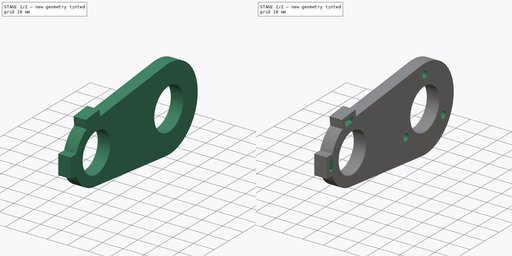
[diagram: build sequence overview — one tinted view per stage of 2, left to right]
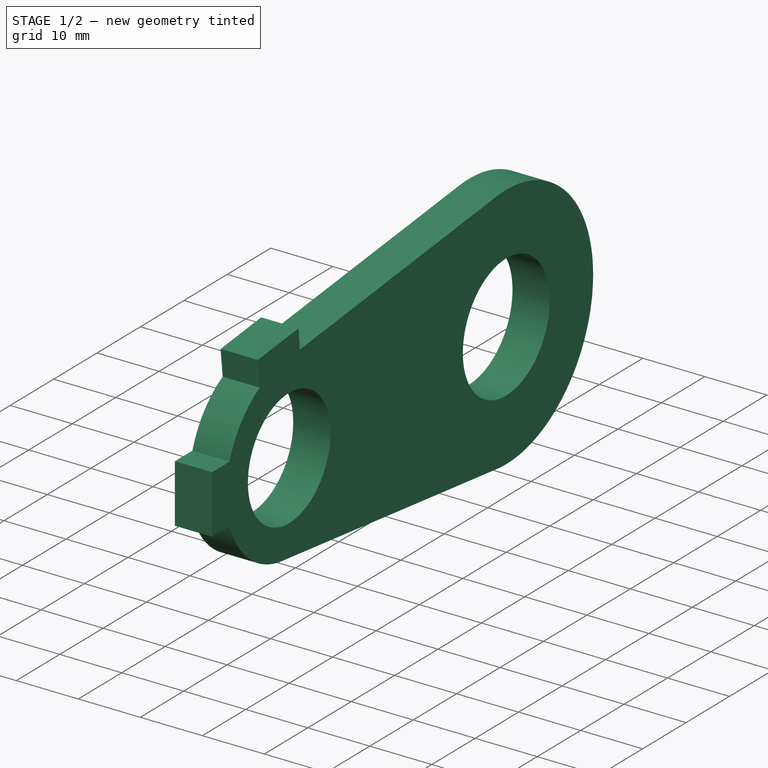
[diagram: stage 1 of 2 — iso view after this stage's code; geometry added in this stage tinted green]
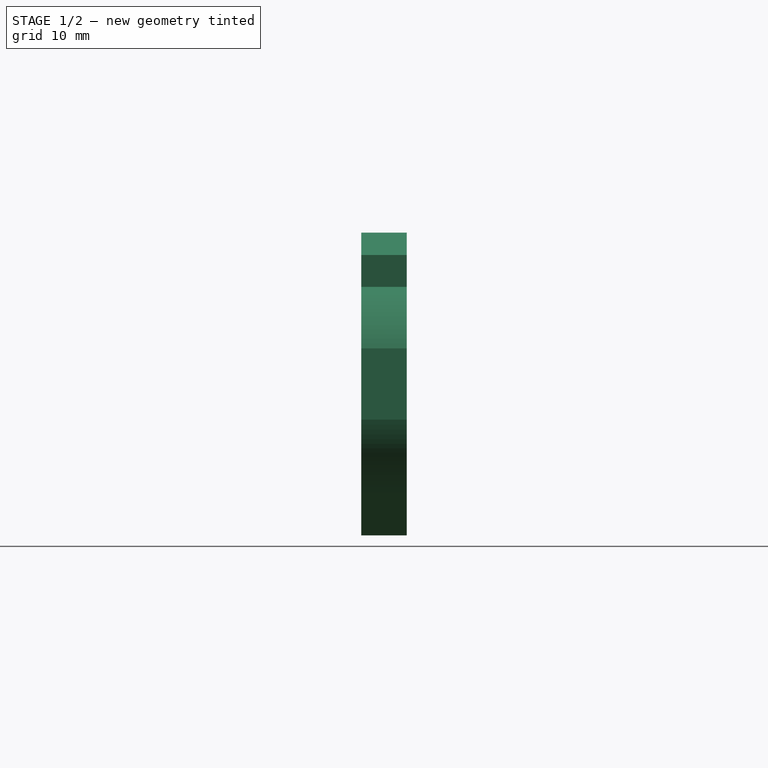
[diagram: stage 1 of 2 — front view after this stage's code; geometry added in this stage tinted green]
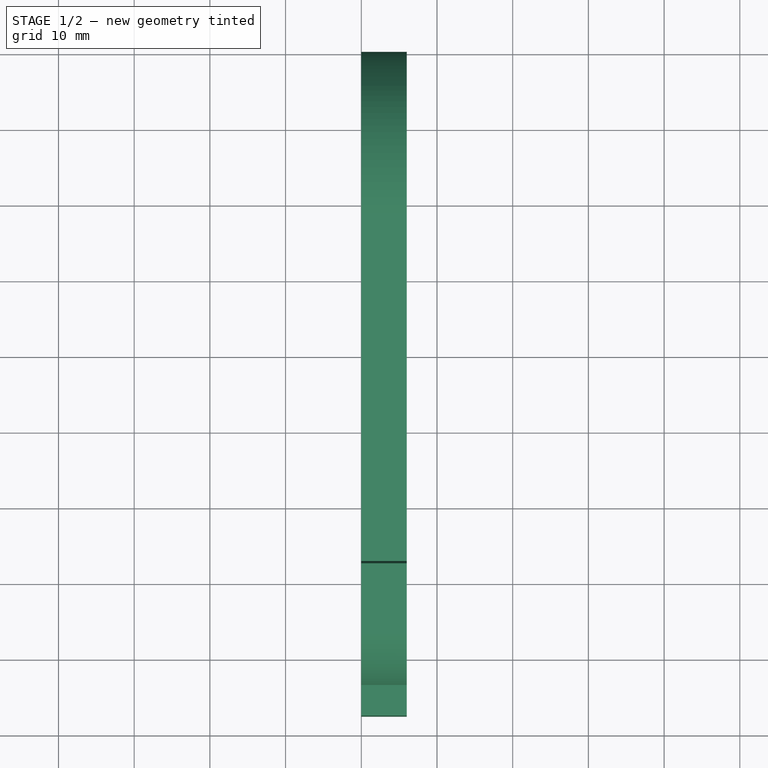
[diagram: stage 1 of 2 — top view after this stage's code; geometry added in this stage tinted green]
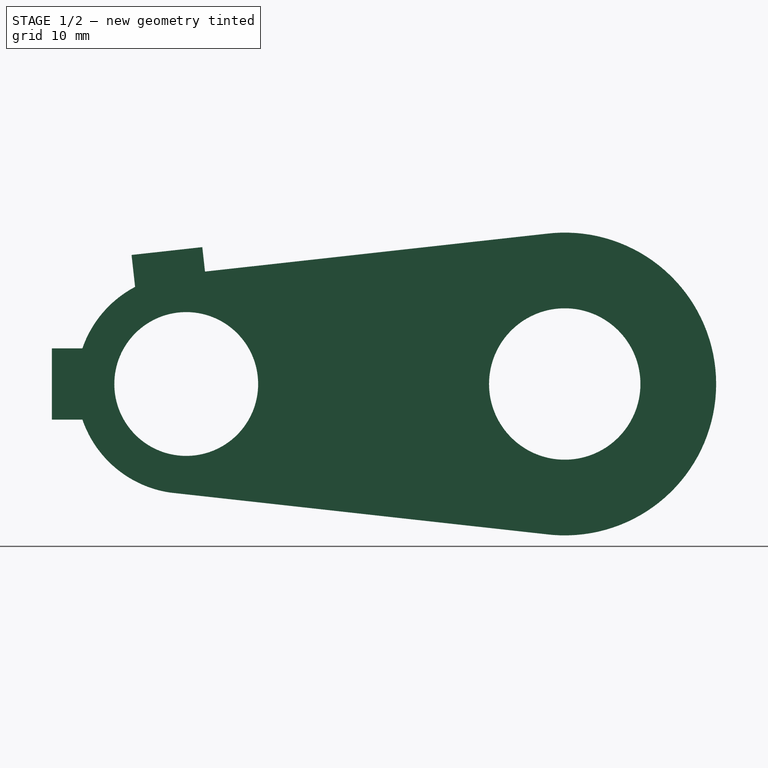
[diagram: stage 1 of 2 — right view after this stage's code; geometry added in this stage tinted green]
FCSTD DOCUMENT  (FreeCAD 0.19R24291 (Git))
Label: Pivot_codeur
License: All rights reserved
LicenseURL: http://en.wikipedia.org/wiki/All_rights_reserved
objects: Sketcher::SketchObject×4, PartDesign::Pad×2, PartDesign::Pocket×2, PartDesign::Body×1, Part::Refine×1, Part::Part2DObjectPython×1
note: 15 computed .brp shape members not serialized (recipe doc carries the construction recipe); baked Part::Feature solids carry a one-line shape summary decoded from their .brp

FEATURE [Sketcher::SketchObject] Sketch
  FullyConstrained = false
  MapMode = 5
  Placement = pos=(0,0,0) rot=(0.57735,0.57735,0.57735;2.0944rad)
  Support = -> [YZ_Plane]
  sketch-geometry (6):
    g0: ArcOfCircle CenterX=0 CenterY=0 CenterZ=0 NormalX=0 NormalY=0 NormalZ=1 AngleXU=0 Radius=14.5 StartAngle=1.72259 EndAngle=4.5606
    g1: ArcOfCircle CenterX=50 CenterY=0 CenterZ=0 NormalX=0 NormalY=0 NormalZ=1 AngleXU=0 Radius=20 StartAngle=4.58533 EndAngle=7.98104
    g2: LineSegment StartX=-2.19256 StartY=14.3333 StartZ=0 EndX=47.4656 EndY=19.8388 EndZ=0
    g3: LineSegment StartX=-2.19256 StartY=-14.3333 StartZ=0 EndX=47.4656 EndY=-19.8388 EndZ=0
    g4: Circle CenterX=0 CenterY=0 CenterZ=0 NormalX=0 NormalY=0 NormalZ=1 AngleXU=0 Radius=9.5
    g5: Circle CenterX=50 CenterY=0 CenterZ=0 NormalX=0 NormalY=0 NormalZ=1 AngleXU=0 Radius=10
  constraints (15):
    c: Coincident(g0,g-1)
    c: Radius(g0) = 14.5
    c: PointOnObject(g1,g-1)
    c: Radius(g1) = 20
    c: Coincident(g2,g0)
    c: Coincident(g2,g1)
    c: Coincident(g3,g0)
    c: Coincident(g3,g1)
    c: DistanceX(g0,g1) = 50
    c: Vertical(g0,g0)
    c: Vertical(g1,g1)
    c: Coincident(g4,g0)
    c: Radius(g4) = 9.5
    c: Coincident(g5,g1)
    c: Radius(g5) = 10
FEATURE [PartDesign::Pad] Pad  label="base_pivot"
  Direction = (1,1,1)
  Length = 6
  Length2 = 100
  Placement = pos=(0,0,0) rot=(0.57735,0.57735,0.57735;2.0944rad)
  Profile = -> Sketch
  Type = 0
FEATURE [Sketcher::SketchObject] Sketch001
  ExternalGeometry = -> [Pad]
  FullyConstrained = true
  MapMode = 5
  Placement = pos=(6,-1.3e-15,1.3e-15) rot=(0.57735,0.57735,0.57735;2.0944rad)
  Support = -> [Pad]
  sketch-geometry (14):
    g0: LineSegment StartX=-7.22206 StartY=17.0456 StartZ=0 EndX=2.12069 EndY=18.0814 EndZ=0
    g1: LineSegment StartX=2.83694 StartY=11.621 StartZ=0 EndX=-6.50581 EndY=10.5852 EndZ=0
    g2: LineSegment StartX=-7.22206 StartY=17.0456 StartZ=0 EndX=2.83694 EndY=11.621 EndZ=0
    g3: LineSegment StartX=-6.50581 StartY=10.5852 StartZ=0 EndX=2.12069 EndY=18.0814 EndZ=0
    g4: GeomPoint X=-2.19256 Y=14.3333 Z=0
    g5: GeomPoint X=-14.5 Y=0 Z=0
    g6: LineSegment StartX=-17.75 StartY=-4.7 StartZ=0 EndX=-11.25 EndY=-4.7 EndZ=0
    g7: LineSegment StartX=-11.25 StartY=-4.7 StartZ=0 EndX=-11.25 EndY=4.7 EndZ=0
    g8: LineSegment StartX=-11.25 StartY=4.7 StartZ=0 EndX=-17.75 EndY=4.7 EndZ=0
    g9: LineSegment StartX=-17.75 StartY=4.7 StartZ=0 EndX=-17.75 EndY=-4.7 EndZ=0
    g10: LineSegment StartX=-17.75 StartY=4.7 StartZ=0 EndX=-11.25 EndY=-4.7 EndZ=0
    g11: LineSegment StartX=-17.75 StartY=-4.7 StartZ=0 EndX=-11.25 EndY=4.7 EndZ=0
    g12: LineSegment StartX=-7.22206 StartY=17.0456 StartZ=0 EndX=-6.50581 EndY=10.5852 EndZ=0
    g13: LineSegment StartX=2.12069 StartY=18.0814 StartZ=0 EndX=2.83694 EndY=11.621 EndZ=0
  constraints (35):
    c: Distance(g0) = 9.4
    c: Parallel(g1,g-3)
    c: Coincident(g2,g0)
    c: Coincident(g3,g1)
    c: Coincident(g3,g0)
    c: PointOnObject(g4,g3)
    c: PointOnObject(g4,g2)
    c: Coincident(g4,g-4)
    c: PointOnObject(g5,g-4)
    c: PointOnObject(g5,g-1)
    c: Coincident(g6,g7)
    c: Coincident(g7,g8)
    c: Coincident(g8,g9)
    c: Coincident(g9,g6)
    c: Horizontal(g6)
    c: Horizontal(g8)
    c: Vertical(g7)
    c: Vertical(g9)
    c: Coincident(g10,g8)
    c: Coincident(g10,g6)
    c: Coincident(g11,g6)
    c: Coincident(g11,g7)
    c: PointOnObject(g5,g10)
    c: PointOnObject(g5,g11)
    c: DistanceX(g8,g8) = 6.5
    c: DistanceY(g9,g9) = 9.4
    c: Equal(g1,g0)
    c: Distance(g0,g1) = 6.5
    c: Coincident(g12,g0)
    c: Coincident(g12,g1)
    c: Coincident(g13,g0)
    c: Coincident(g13,g1)
    c: Equal(g12,g13)
    c: Perpendicular(g0,g12)
    c: Coincident(g2,g1)
FEATURE [PartDesign::Pad] Pad001  label="supports_ecrous"
  BaseFeature = -> Pad
  Direction = (1,1,1)
  Length = 6
  Length2 = 100
  Placement = pos=(0,0,0) rot=(0.57735,0.57735,0.57735;2.0944rad)
  Profile = -> Sketch001
  Reversed = true
  Type = 1
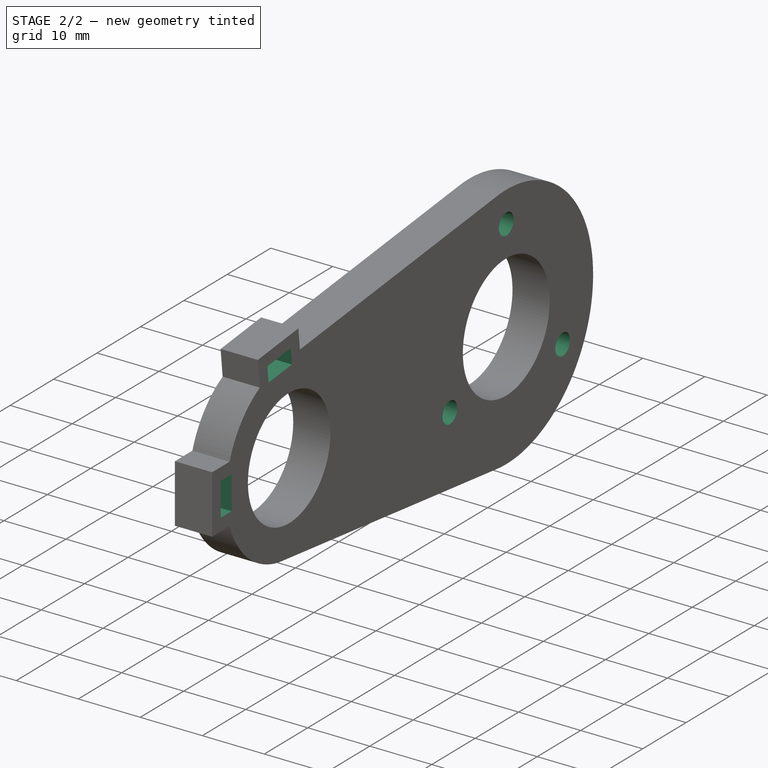
[diagram: stage 2 of 2 — iso view after this stage's code; geometry added in this stage tinted green]
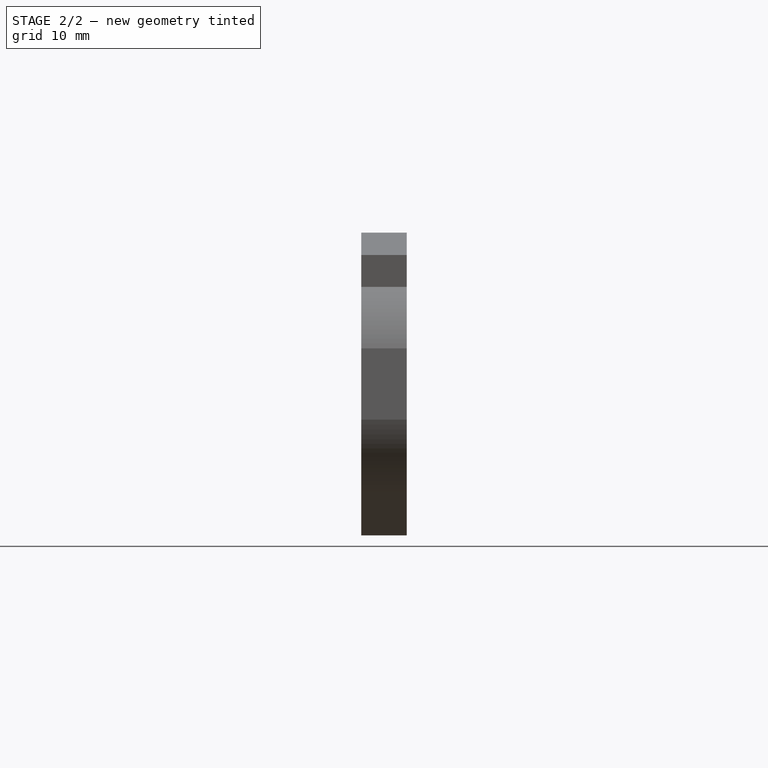
[diagram: stage 2 of 2 — front view after this stage's code; geometry added in this stage tinted green]
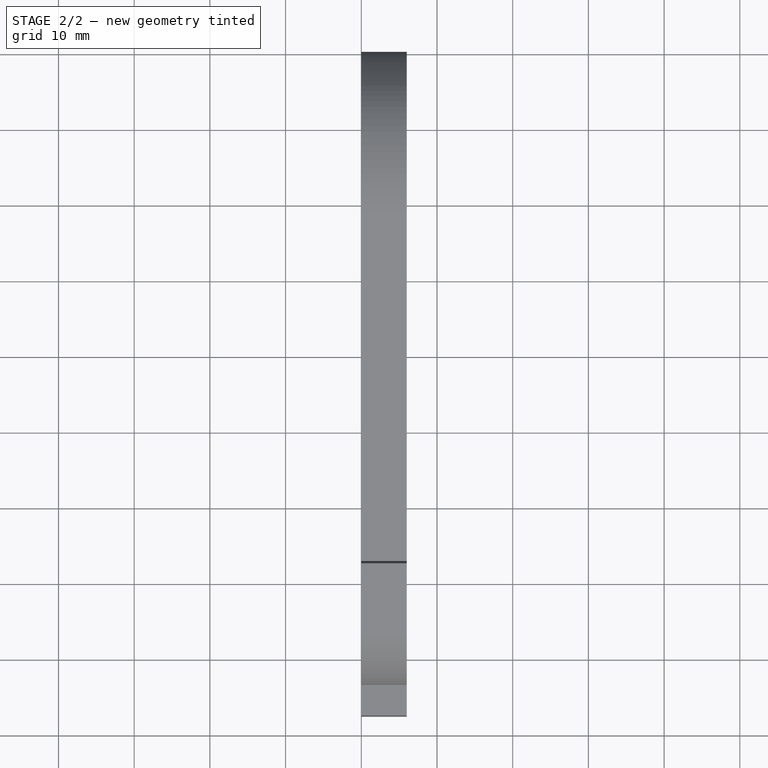
[diagram: stage 2 of 2 — top view after this stage's code; geometry added in this stage tinted green]
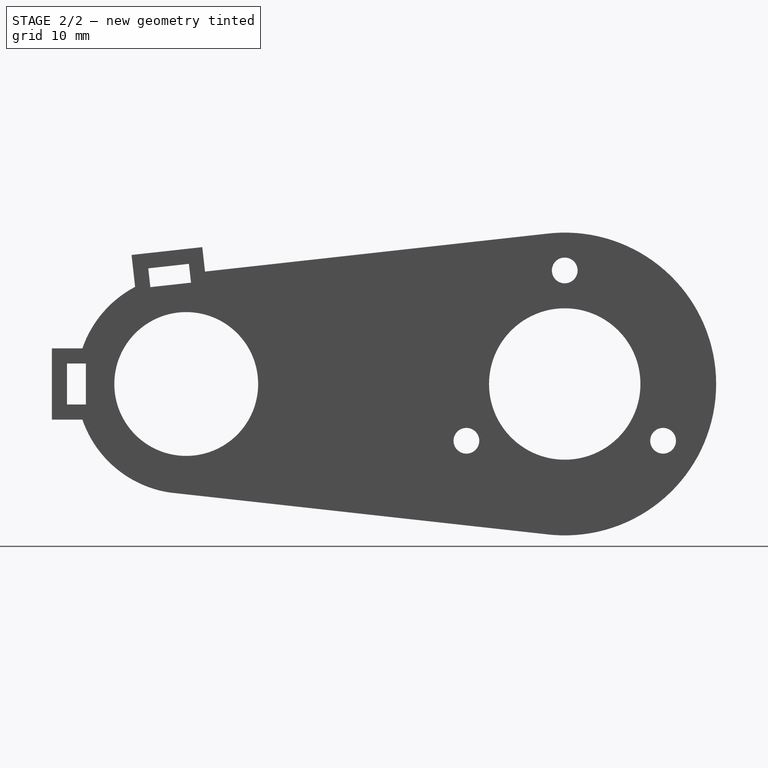
[diagram: stage 2 of 2 — right view after this stage's code; geometry added in this stage tinted green]
FEATURE [Sketcher::SketchObject] Sketch002
  ExternalGeometry = -> [Pad001]
  FullyConstrained = false
  MapMode = 5
  Placement = pos=(6,-1.3e-15,1.5e-15) rot=(0.57735,0.57735,0.57735;2.0944rad)
  Support = -> [Pad001]
  sketch-geometry (18):
    g0: LineSegment StartX=2.47882 StartY=14.8512 StartZ=0 EndX=2.47882 EndY=14.8512 EndZ=0
    g1: LineSegment StartX=-6.50581 StartY=10.5852 StartZ=0 EndX=-6.75475 EndY=12.8306 EndZ=0
    g2: LineSegment StartX=-4.73838 StartY=12.7934 StartZ=0 EndX=-5.01386 EndY=15.2781 EndZ=0
    g3: LineSegment StartX=-5.01386 StartY=15.2781 StartZ=0 EndX=0.353257 EndY=15.8732 EndZ=0
    g4: LineSegment StartX=0.353257 StartY=15.8732 StartZ=0 EndX=0.628739 EndY=13.3884 EndZ=0
    g5: LineSegment StartX=0.628739 StartY=13.3884 StartZ=0 EndX=-4.73838 EndY=12.7934 EndZ=0
    g6: LineSegment StartX=-5.01386 StartY=15.2781 StartZ=0 EndX=0.628739 EndY=13.3884 EndZ=0
    g7: LineSegment StartX=-4.73838 StartY=12.7934 StartZ=0 EndX=0.353257 EndY=15.8732 EndZ=0
    g8: GeomPoint X=-2.19256 Y=14.3333 Z=0
    g9: LineSegment StartX=-17.75 StartY=4.7 StartZ=0 EndX=-11.25 EndY=-4.7 EndZ=0
    g10: LineSegment StartX=-17.75 StartY=-4.7 StartZ=0 EndX=-11.25 EndY=4.7 EndZ=0
    g11: GeomPoint X=-14.5 Y=1.5e-15 Z=0
    g12: LineSegment StartX=-15.75 StartY=-2.7 StartZ=0 EndX=-13.25 EndY=-2.7 EndZ=0
    g13: LineSegment StartX=-13.25 StartY=-2.7 StartZ=0 EndX=-13.25 EndY=2.7 EndZ=0
    g14: LineSegment StartX=-13.25 StartY=2.7 StartZ=0 EndX=-15.75 EndY=2.7 EndZ=0
    g15: LineSegment StartX=-15.75 StartY=2.7 StartZ=0 EndX=-15.75 EndY=-2.7 EndZ=0
    g16: LineSegment StartX=-15.75 StartY=2.7 StartZ=0 EndX=-13.25 EndY=-2.7 EndZ=0
    g17: LineSegment StartX=-15.75 StartY=-2.7 StartZ=0 EndX=-13.25 EndY=2.7 EndZ=0
  constraints (33):
    c: Coincident(g2,g3)
    c: Coincident(g3,g4)
    c: Coincident(g4,g5)
    c: Coincident(g5,g2)
    c: Perpendicular(g4,g3)
    c: Perpendicular(g5,g4)
    c: Perpendicular(g2,g5)
    c: Distance(g3) = 5.4
    c: Distance(g4) = 2.5
    c: Coincident(g6,g2)
    c: Coincident(g6,g4)
    c: Coincident(g7,g2)
    c: Coincident(g7,g3)
    c: PointOnObject(g8,g7)
    c: PointOnObject(g8,g6)
    c: PointOnObject(g11,g10)
    c: PointOnObject(g11,g9)
    c: Coincident(g12,g13)
    c: Coincident(g13,g14)
    c: Coincident(g14,g15)
    c: Coincident(g15,g12)
    c: Horizontal(g12)
    c: Horizontal(g14)
    c: Vertical(g13)
    c: Vertical(g15)
    c: Coincident(g16,g14)
    c: Coincident(g16,g12)
    c: Coincident(g17,g12)
    c: Coincident(g17,g13)
    c: PointOnObject(g11,g16)
    c: PointOnObject(g11,g17)
    c: DistanceX(g14,g14) = 2.5
    c: DistanceY(g13,g13) = 5.4
FEATURE [PartDesign::Pocket] Pocket  label="trous_ecrous"
  BaseFeature = -> Pad001
  Length = 5
  Length2 = 100
  Placement = pos=(0,0,0) rot=(0.57735,0.57735,0.57735;2.0944rad)
  Profile = -> Sketch002
  Type = 1
FEATURE [Sketcher::SketchObject] Sketch003
  ExternalGeometry = -> [Pocket]
  FullyConstrained = true
  MapMode = 5
  Placement = pos=(6,-1.3e-15,1.3e-15) rot=(0.57735,0.57735,0.57735;2.0944rad)
  Support = -> [Pocket]
  sketch-geometry (7):
    g0: Circle CenterX=50 CenterY=15 CenterZ=0 NormalX=0 NormalY=0 NormalZ=1 AngleXU=0 Radius=1.7
    g1: Circle CenterX=50 CenterY=7e-16 CenterZ=0 NormalX=0 NormalY=0 NormalZ=1 AngleXU=0 Radius=15
    g2: Circle CenterX=62.9904 CenterY=-7.5 CenterZ=0 NormalX=0 NormalY=0 NormalZ=1 AngleXU=0 Radius=1.7
    g3: Circle CenterX=37.0096 CenterY=-7.5 CenterZ=0 NormalX=0 NormalY=0 NormalZ=1 AngleXU=0 Radius=1.7
    g4: LineSegment StartX=50 StartY=7e-16 StartZ=0 EndX=50 EndY=15 EndZ=0
    g5: LineSegment StartX=50 StartY=7e-16 StartZ=0 EndX=62.9904 EndY=-7.5 EndZ=0
    g6: LineSegment StartX=50 StartY=7e-16 StartZ=0 EndX=37.0096 EndY=-7.5 EndZ=0
  constraints (17):
    c: Radius(g0) = 1.7
    c: Coincident(g1,g-3)
    c: PointOnObject(g0,g1)
    c: PointOnObject(g2,g1)
    c: PointOnObject(g3,g1)
    c: Equal(g2,g0)
    c: Equal(g0,g3)
    c: Coincident(g4,g1)
    c: Coincident(g4,g0)
    c: Vertical(g4)
    c: Coincident(g5,g1)
    c: Coincident(g5,g2)
    c: Coincident(g6,g1)
    c: Coincident(g6,g3)
    c: Angle(g5,g4) = 2.0944
    c: Angle(g6,g5) = 2.0944
    c: DistanceY(g1,g0) = 15
FEATURE [PartDesign::Pocket] Pocket001  label="trous_m3"
  BaseFeature = -> Pocket
  Length = 5
  Length2 = 100
  Placement = pos=(0,0,0) rot=(0.57735,0.57735,0.57735;2.0944rad)
  Profile = -> Sketch003
  Type = 1
FEATURE [PartDesign::Body] Body
  Group = -> [Sketch,Pad,Sketch001,Pad001,Sketch002,Pocket,Sketch003,Pocket001]
  Origin = -> Origin
  Tip = -> Pocket001
FEATURE [Part::Refine] Pocket001001  label="Refined"
  Source = -> Pocket001
FEATURE [Part::Part2DObjectPython] Shape2DView  # Draft 2D object (typed FeaturePython)
  Base = -> Pocket001001
  FuseArch = false
  HiddenLines = false
  InPlace = true
  Projection = (1,0,0)
  ProjectionMode = 0
  SegmentLength = 0.05
  Tessellation = false
  VisibleOnly = false
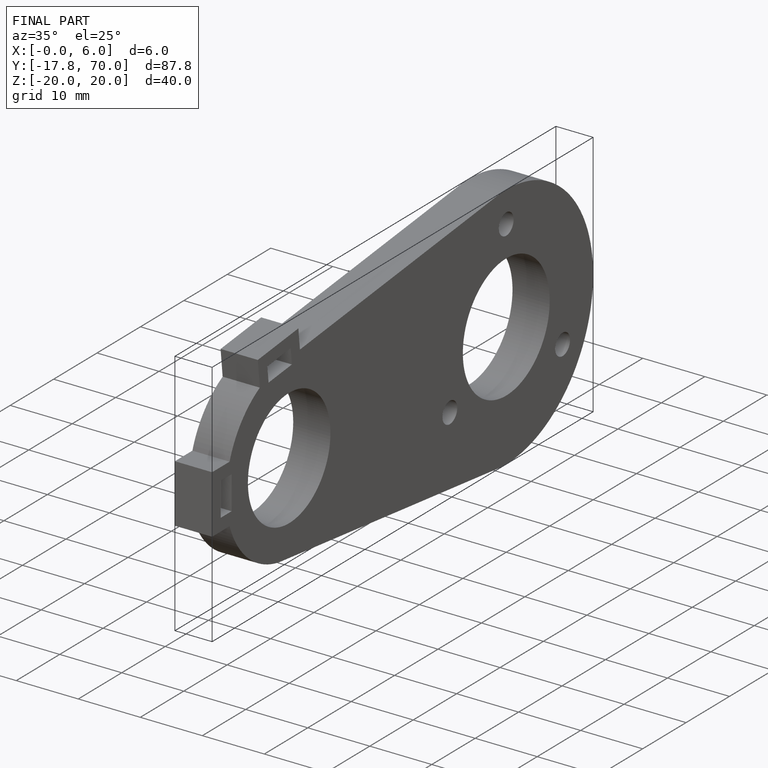
[diagram: finished part — iso view with bounding-box wireframe]
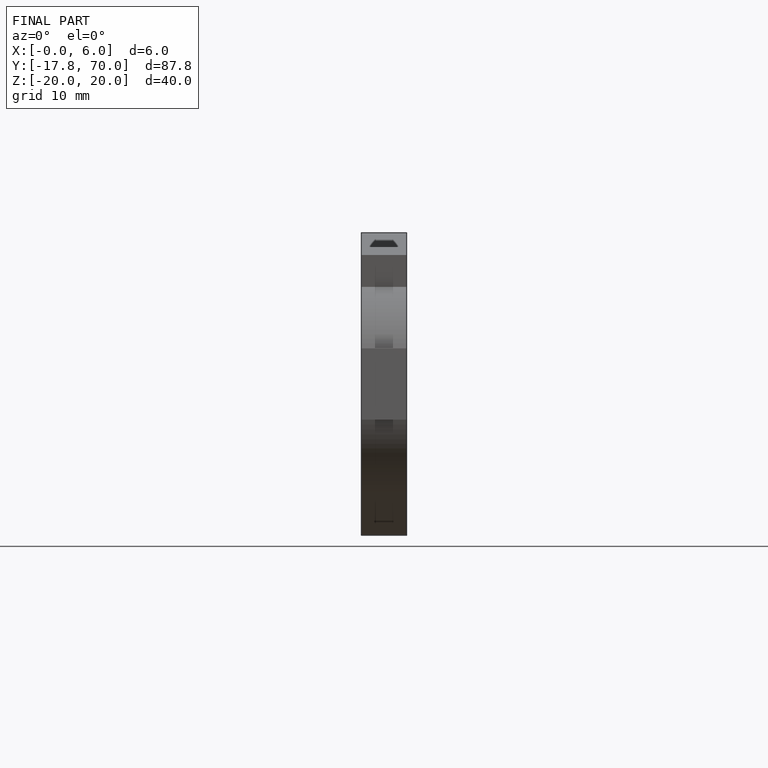
[diagram: finished part — front view with bounding-box wireframe]
